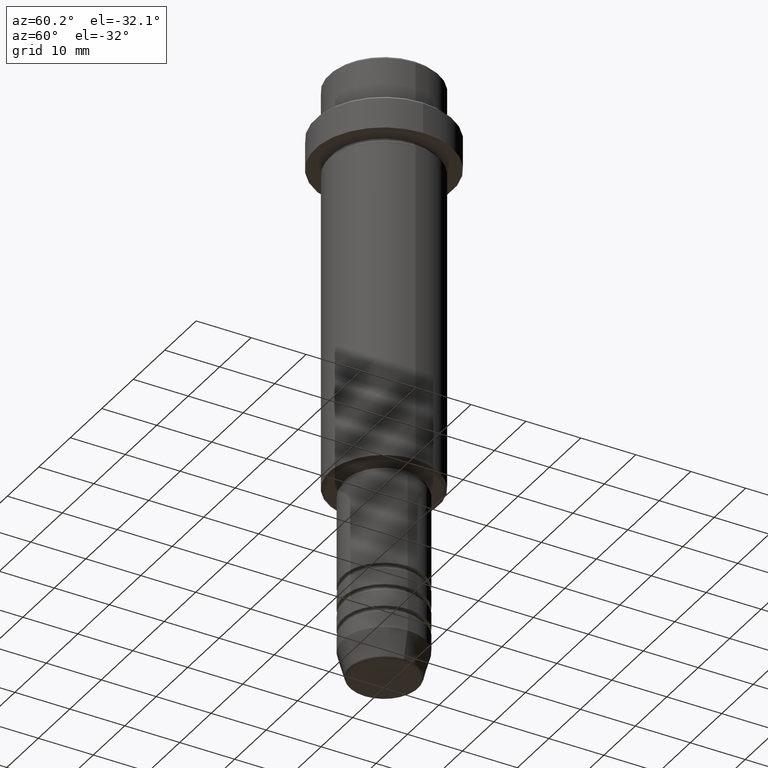
[diagram: clean part render]
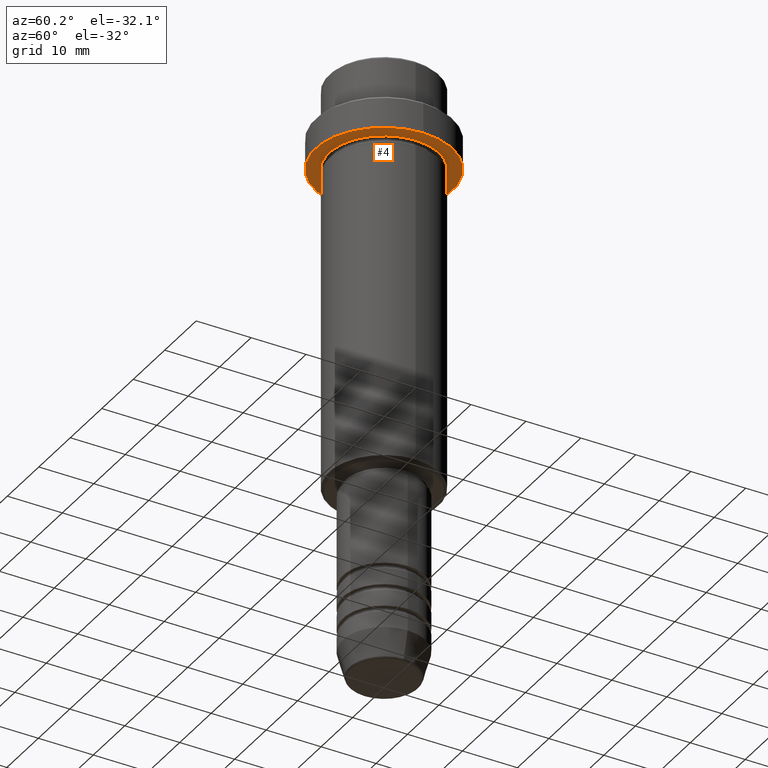
[diagram: same view with one face highlighted and labeled with its STEP entity id]
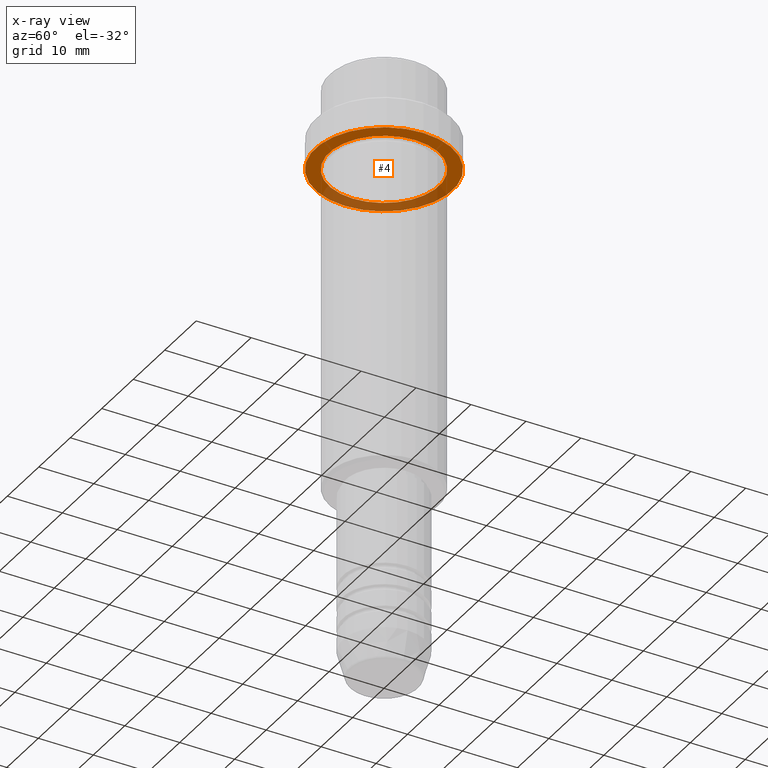
[diagram: x-ray of the same camera — body ghosted, the highlighted face saturated]
A machine part, auxiliary view. The second image highlights one B-rep face of the part: STEP entity #4.
The next image is the same camera in x-ray: the body ghosted, the highlighted face saturated — about 31% of this face is hidden behind the body in this view.
In plain terms, the highlighted planar face has unit normal (0, 0, -1).
Its self-contained STEP definition (entity closure, byte-faithful):
#4 = ADVANCED_FACE ( 'NONE', ( #1264, #1393 ), #842, .T. ) ;
#46 = CARTESIAN_POINT ( 'NONE',  ( 9.999999999999994671, 1.224646799147352665E-15, -15.00000000000000000 ) ) ;
#65 = CIRCLE ( 'NONE', #1261, 9.999999999999994671 ) ;
#72 = DIRECTION ( 'NONE',  ( -1.000000000000000000, 0.000000000000000000, 0.000000000000000000 ) ) ;
#88 = DIRECTION ( 'NONE',  ( 1.000000000000000000, 0.000000000000000000, 0.000000000000000000 ) ) ;
#170 = DIRECTION ( 'NONE',  ( 0.000000000000000000, 0.000000000000000000, -1.000000000000000000 ) ) ;
#181 = EDGE_CURVE ( 'NONE', #247, #282, #319, .T. ) ;
#226 = EDGE_LOOP ( 'NONE', ( #1285, #335 ) ) ;
#243 = EDGE_LOOP ( 'NONE', ( #1416, #404 ) ) ;
#247 = VERTEX_POINT ( 'NONE', #872 ) ;
#267 = CARTESIAN_POINT ( 'NONE',  ( 0.000000000000000000, 12.50000000000000000, -15.00000000000000000 ) ) ;
#282 = VERTEX_POINT ( 'NONE', #916 ) ;
#314 = CARTESIAN_POINT ( 'NONE',  ( 0.000000000000000000, 0.000000000000000000, -15.00000000000000178 ) ) ;
#319 = CIRCLE ( 'NONE', #505, 12.50000000000000000 ) ;
#335 = ORIENTED_EDGE ( 'NONE', *, *, #1142, .T. ) ;
#368 = CARTESIAN_POINT ( 'NONE',  ( 0.000000000000000000, 0.000000000000000000, -15.00000000000000178 ) ) ;
#404 = ORIENTED_EDGE ( 'NONE', *, *, #447, .F. ) ;
#420 = DIRECTION ( 'NONE',  ( -0.000000000000000000, -0.000000000000000000, 1.000000000000000000 ) ) ;
#447 = EDGE_CURVE ( 'NONE', #282, #247, #746, .T. ) ;
#505 = AXIS2_PLACEMENT_3D ( 'NONE', #314, #420, #88 ) ;
#597 = DIRECTION ( 'NONE',  ( 1.000000000000000000, 0.000000000000000000, 0.000000000000000000 ) ) ;
#640 = CARTESIAN_POINT ( 'NONE',  ( 0.000000000000000000, 0.000000000000000000, -15.00000000000000000 ) ) ;
#654 = CIRCLE ( 'NONE', #1276, 9.999999999999994671 ) ;
#746 = CIRCLE ( 'NONE', #816, 12.50000000000000000 ) ;
#784 = VERTEX_POINT ( 'NONE', #885 ) ;
#816 = AXIS2_PLACEMENT_3D ( 'NONE', #368, #1040, #597 ) ;
#826 = DIRECTION ( 'NONE',  ( -0.000000000000000000, -0.000000000000000000, 1.000000000000000000 ) ) ;
#842 = PLANE ( 'NONE',  #1035 ) ;
#872 = CARTESIAN_POINT ( 'NONE',  ( 12.50000000000000000, 0.000000000000000000, -15.00000000000000178 ) ) ;
#885 = CARTESIAN_POINT ( 'NONE',  ( -9.999999999999994671, 0.000000000000000000, -15.00000000000000000 ) ) ;
#916 = CARTESIAN_POINT ( 'NONE',  ( -12.50000000000000000, 1.530808498934191521E-15, -15.00000000000000178 ) ) ;
#934 = DIRECTION ( 'NONE',  ( -1.000000000000000000, 0.000000000000000000, -0.000000000000000000 ) ) ;
#948 = EDGE_CURVE ( 'NONE', #784, #1288, #654, .T. ) ;
#1035 = AXIS2_PLACEMENT_3D ( 'NONE', #267, #170, #934 ) ;
#1040 = DIRECTION ( 'NONE',  ( -0.000000000000000000, -0.000000000000000000, 1.000000000000000000 ) ) ;
#1074 = DIRECTION ( 'NONE',  ( -0.000000000000000000, -0.000000000000000000, 1.000000000000000000 ) ) ;
#1142 = EDGE_CURVE ( 'NONE', #1288, #784, #65, .T. ) ;
#1261 = AXIS2_PLACEMENT_3D ( 'NONE', #640, #1074, #1402 ) ;
#1264 = FACE_BOUND ( 'NONE', #226, .T. ) ;
#1266 = CARTESIAN_POINT ( 'NONE',  ( 0.000000000000000000, 0.000000000000000000, -15.00000000000000000 ) ) ;
#1276 = AXIS2_PLACEMENT_3D ( 'NONE', #1266, #826, #72 ) ;
#1285 = ORIENTED_EDGE ( 'NONE', *, *, #948, .T. ) ;
#1288 = VERTEX_POINT ( 'NONE', #46 ) ;
#1393 = FACE_OUTER_BOUND ( 'NONE', #243, .T. ) ;
#1402 = DIRECTION ( 'NONE',  ( -1.000000000000000000, 0.000000000000000000, 0.000000000000000000 ) ) ;
#1416 = ORIENTED_EDGE ( 'NONE', *, *, #181, .F. ) ;